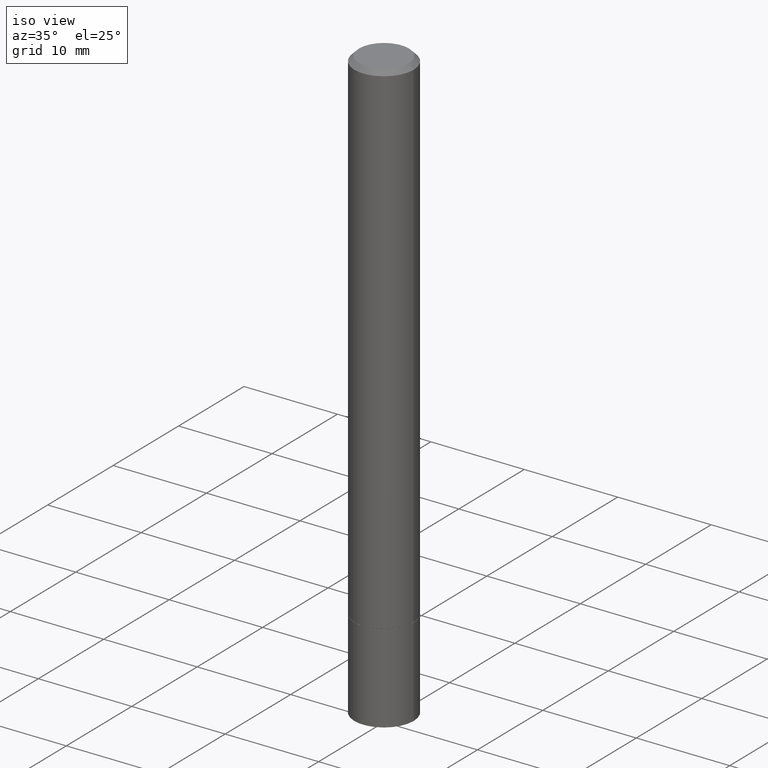
[diagram: clean part render]
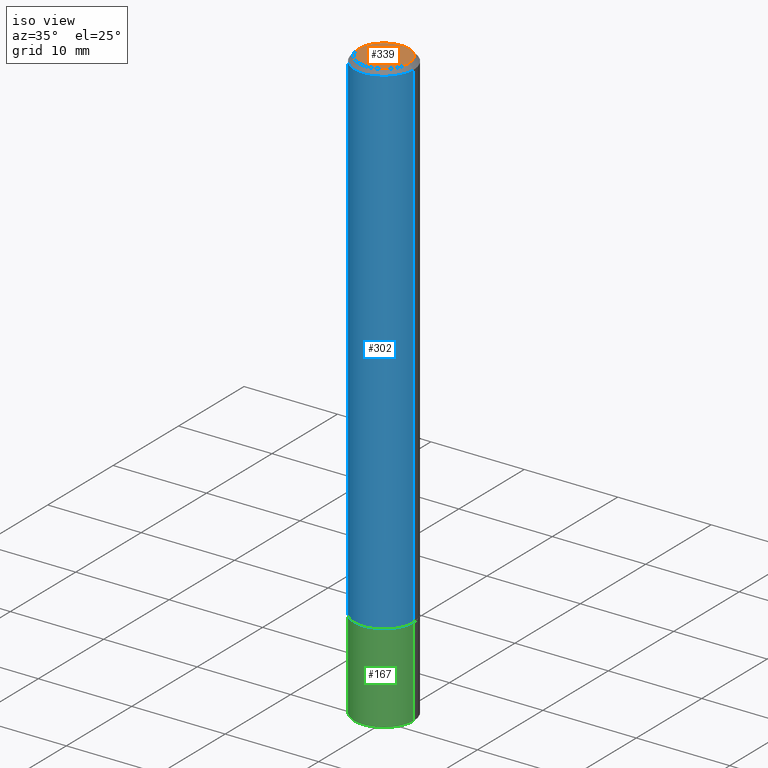
[diagram: same view with three faces highlighted in distinct colors, each labeled with its STEP entity id]
A machine part, iso view with three faces highlighted in distinct colors.
Their STEP definitions:

[orange] entity #339 — the highlighted planar face has unit normal (0, -0, -1).
#8 = ORIENTED_EDGE ( 'NONE', *, *, #98, .T. ) ;
#24 = PLANE ( 'NONE',  #117 ) ;
#44 = DIRECTION ( 'NONE',  ( -1.000000000000000000, 6.982962677686265922E-15, -4.876176775795935793E-29 ) ) ;
#49 = DIRECTION ( 'NONE',  ( 2.438088387897960049E-29, -3.491481338843145188E-15, -1.000000000000000000 ) ) ;
#95 = CARTESIAN_POINT ( 'NONE',  ( 0.1049999999999997324, -8.238720831321557908E-16, 5.444276250344137453E-30 ) ) ;
#98 = EDGE_CURVE ( 'NONE', #216, #111, #261, .T. ) ;
#111 = VERTEX_POINT ( 'NONE', #137 ) ;
#114 = DIRECTION ( 'NONE',  ( -2.445468806185136597E-29, 3.491481338843145583E-15, 1.000000000000000000 ) ) ;
#117 = AXIS2_PLACEMENT_3D ( 'NONE', #309, #49, #44 ) ;
#118 = DIRECTION ( 'NONE',  ( -2.445468806185136597E-29, 3.491481338843145583E-15, 1.000000000000000000 ) ) ;
#137 = CARTESIAN_POINT ( 'NONE',  ( -0.1049999999999997324, 7.681258945454871096E-16, -5.249639473182153965E-30 ) ) ;
#171 = CARTESIAN_POINT ( 'NONE',  ( 0.000000000000000000, 0.000000000000000000, 0.000000000000000000 ) ) ;
#216 = VERTEX_POINT ( 'NONE', #95 ) ;
#227 = CIRCLE ( 'NONE', #287, 0.1049999999999997324 ) ;
#233 = DIRECTION ( 'NONE',  ( 1.000000000000000000, -6.982962677686265922E-15, 4.876176775795935793E-29 ) ) ;
#243 = EDGE_CURVE ( 'NONE', #111, #216, #227, .T. ) ;
#261 = CIRCLE ( 'NONE', #311, 0.1049999999999997324 ) ;
#278 = EDGE_LOOP ( 'NONE', ( #361, #8 ) ) ;
#287 = AXIS2_PLACEMENT_3D ( 'NONE', #290, #118, #324 ) ;
#290 = CARTESIAN_POINT ( 'NONE',  ( 0.000000000000000000, 0.000000000000000000, 0.000000000000000000 ) ) ;
#309 = CARTESIAN_POINT ( 'NONE',  ( 7.332110811570560522E-16, 0.1049999999999997324, -3.666055405785293573E-16 ) ) ;
#311 = AXIS2_PLACEMENT_3D ( 'NONE', #171, #114, #233 ) ;
#324 = DIRECTION ( 'NONE',  ( 1.000000000000000000, -6.982962677686265922E-15, 4.876176775795935793E-29 ) ) ;
#331 = FACE_OUTER_BOUND ( 'NONE', #278, .T. ) ;
#339 = ADVANCED_FACE ( 'NONE', ( #331 ), #24, .F. ) ;
#361 = ORIENTED_EDGE ( 'NONE', *, *, #243, .T. ) ;

[blue] entity #302 — the highlighted cylindrical surface (edge-blend (fillet) strip) has radius 3.175 mm, axis along (-0, 0, 1).
#9 = LINE ( 'NONE', #88, #52 ) ;
#13 = LINE ( 'NONE', #248, #205 ) ;
#21 = CIRCLE ( 'NONE', #319, 0.1250000000000000000 ) ;
#22 = VERTEX_POINT ( 'NONE', #55 ) ;
#39 = CARTESIAN_POINT ( 'NONE',  ( -0.1249999999999997224, 8.030407079339183643E-16, -0.02000000000000003511 ) ) ;
#52 = VECTOR ( 'NONE', #112, 39.37007874015748143 ) ;
#53 = VERTEX_POINT ( 'NONE', #347 ) ;
#55 = CARTESIAN_POINT ( 'NONE',  ( 0.1250000000000000000, -8.288776698413625533E-15, -2.124000000000000110 ) ) ;
#81 = EDGE_CURVE ( 'NONE', #53, #155, #9, .T. ) ;
#88 = CARTESIAN_POINT ( 'NONE',  ( -0.1249999999999998612, 8.881784197001242463E-16, -6.148668862818625221E-30 ) ) ;
#97 = ORIENTED_EDGE ( 'NONE', *, *, #220, .F. ) ;
#101 = ORIENTED_EDGE ( 'NONE', *, *, #81, .F. ) ;
#102 = CYLINDRICAL_SURFACE ( 'NONE', #308, 0.1249999999999998612 ) ;
#112 = DIRECTION ( 'NONE',  ( -2.445468806185136877E-29, 3.491481338843145188E-15, 1.000000000000000000 ) ) ;
#151 = CARTESIAN_POINT ( 'NONE',  ( 5.194175744337230786E-29, -7.415906363702842194E-15, -2.124000000000000110 ) ) ;
#155 = VERTEX_POINT ( 'NONE', #39 ) ;
#161 = AXIS2_PLACEMENT_3D ( 'NONE', #173, #238, #181 ) ;
#173 = CARTESIAN_POINT ( 'NONE',  ( 4.890937612370281041E-31, -6.982962677686302702E-17, -0.02000000000000003511 ) ) ;
#181 = DIRECTION ( 'NONE',  ( 1.000000000000000000, -6.982962677686266711E-15, 0.000000000000000000 ) ) ;
#190 = ORIENTED_EDGE ( 'NONE', *, *, #297, .T. ) ;
#193 = DIRECTION ( 'NONE',  ( 1.000000000000000000, -6.982962677686266711E-15, 4.876176775795935793E-29 ) ) ;
#194 = ORIENTED_EDGE ( 'NONE', *, *, #292, .T. ) ;
#205 = VECTOR ( 'NONE', #219, 39.37007874015748143 ) ;
#208 = CARTESIAN_POINT ( 'NONE',  ( 0.1249999999999997224, -9.273918764983025741E-16, -0.02000000000000003511 ) ) ;
#219 = DIRECTION ( 'NONE',  ( -2.445468806185136877E-29, 3.491481338843145188E-15, 1.000000000000000000 ) ) ;
#220 = EDGE_CURVE ( 'NONE', #155, #270, #326, .T. ) ;
#234 = DIRECTION ( 'NONE',  ( -2.445468806185136597E-29, 3.491481338843145583E-15, 1.000000000000000000 ) ) ;
#238 = DIRECTION ( 'NONE',  ( -2.445468806185136597E-29, 3.491481338843145583E-15, 1.000000000000000000 ) ) ;
#248 = CARTESIAN_POINT ( 'NONE',  ( 0.1249999999999998612, -8.728703347107823527E-16, 6.095220969744912735E-30 ) ) ;
#249 = EDGE_LOOP ( 'NONE', ( #101, #194, #190, #97 ) ) ;
#268 = DIRECTION ( 'NONE',  ( 1.000000000000000000, -6.982962677686270655E-15, 0.000000000000000000 ) ) ;
#270 = VERTEX_POINT ( 'NONE', #208 ) ;
#292 = EDGE_CURVE ( 'NONE', #53, #22, #21, .T. ) ;
#297 = EDGE_CURVE ( 'NONE', #22, #270, #13, .T. ) ;
#301 = DIRECTION ( 'NONE',  ( -2.445468806185136597E-29, 3.491481338843145583E-15, 1.000000000000000000 ) ) ;
#302 = ADVANCED_FACE ( 'NONE', ( #328 ), #102, .T. ) ;
#308 = AXIS2_PLACEMENT_3D ( 'NONE', #333, #301, #193 ) ;
#319 = AXIS2_PLACEMENT_3D ( 'NONE', #151, #234, #268 ) ;
#326 = CIRCLE ( 'NONE', #161, 0.1249999999999997224 ) ;
#328 = FACE_OUTER_BOUND ( 'NONE', #249, .T. ) ;
#333 = CARTESIAN_POINT ( 'NONE',  ( 0.000000000000000000, 0.000000000000000000, 0.000000000000000000 ) ) ;
#347 = CARTESIAN_POINT ( 'NONE',  ( -0.1250000000000000000, -2.854689575539722781E-15, -2.124000000000000110 ) ) ;

[green] entity #167 — the highlighted cylindrical surface (edge-blend (fillet) strip) has radius 3.175 mm, axis along (-0, 0, 1).
#11 = CYLINDRICAL_SURFACE ( 'NONE', #191, 0.1250000000000000000 ) ;
#12 = VECTOR ( 'NONE', #145, 39.37007874015748143 ) ;
#33 = EDGE_LOOP ( 'NONE', ( #330, #107, #228, #252 ) ) ;
#36 = LINE ( 'NONE', #68, #12 ) ;
#40 = CARTESIAN_POINT ( 'NONE',  ( 5.196621213143415268E-29, -7.419397845041685201E-15, -2.125000000000000000 ) ) ;
#57 = DIRECTION ( 'NONE',  ( -2.445468806185136597E-29, 3.491481338843145583E-15, 1.000000000000000000 ) ) ;
#61 = CIRCLE ( 'NONE', #165, 0.1250000000000000000 ) ;
#65 = LINE ( 'NONE', #236, #113 ) ;
#66 = EDGE_CURVE ( 'NONE', #303, #222, #239, .T. ) ;
#68 = CARTESIAN_POINT ( 'NONE',  ( -0.1250000000000000000, 8.881784197001252323E-16, -6.148668862818632227E-30 ) ) ;
#93 = DIRECTION ( 'NONE',  ( -2.445468806185136877E-29, 3.491481338843145188E-15, 1.000000000000000000 ) ) ;
#107 = ORIENTED_EDGE ( 'NONE', *, *, #66, .T. ) ;
#113 = VECTOR ( 'NONE', #93, 39.37007874015748143 ) ;
#121 = DIRECTION ( 'NONE',  ( 1.000000000000000000, -6.982962677686270655E-15, 0.000000000000000000 ) ) ;
#145 = DIRECTION ( 'NONE',  ( -2.445468806185136877E-29, 3.491481338843145188E-15, 1.000000000000000000 ) ) ;
#149 = DIRECTION ( 'NONE',  ( -2.445468806185136597E-29, 3.491481338843145583E-15, 1.000000000000000000 ) ) ;
#165 = AXIS2_PLACEMENT_3D ( 'NONE', #40, #149, #121 ) ;
#167 = ADVANCED_FACE ( 'NONE', ( #242 ), #11, .T. ) ;
#169 = DIRECTION ( 'NONE',  ( 1.000000000000000000, -6.982962677686270655E-15, 0.000000000000000000 ) ) ;
#176 = CARTESIAN_POINT ( 'NONE',  ( -0.1250000000000000000, -7.185872176374649840E-15, -2.125000000000000000 ) ) ;
#185 = CARTESIAN_POINT ( 'NONE',  ( -0.1250000000000000000, -7.185872176374649840E-15, -2.500000000000000000 ) ) ;
#191 = AXIS2_PLACEMENT_3D ( 'NONE', #240, #267, #350 ) ;
#192 = EDGE_CURVE ( 'NONE', #222, #226, #65, .T. ) ;
#197 = VERTEX_POINT ( 'NONE', #176 ) ;
#222 = VERTEX_POINT ( 'NONE', #296 ) ;
#226 = VERTEX_POINT ( 'NONE', #349 ) ;
#228 = ORIENTED_EDGE ( 'NONE', *, *, #192, .T. ) ;
#236 = CARTESIAN_POINT ( 'NONE',  ( 0.1250000000000000000, -8.728703347107833388E-16, 6.095220969744919741E-30 ) ) ;
#239 = CIRCLE ( 'NONE', #256, 0.1250000000000000000 ) ;
#240 = CARTESIAN_POINT ( 'NONE',  ( 0.000000000000000000, 0.000000000000000000, 0.000000000000000000 ) ) ;
#242 = FACE_OUTER_BOUND ( 'NONE', #33, .T. ) ;
#252 = ORIENTED_EDGE ( 'NONE', *, *, #285, .F. ) ;
#256 = AXIS2_PLACEMENT_3D ( 'NONE', #315, #57, #169 ) ;
#265 = EDGE_CURVE ( 'NONE', #303, #197, #36, .T. ) ;
#267 = DIRECTION ( 'NONE',  ( -2.445468806185136597E-29, 3.491481338843145583E-15, 1.000000000000000000 ) ) ;
#285 = EDGE_CURVE ( 'NONE', #197, #226, #61, .T. ) ;
#296 = CARTESIAN_POINT ( 'NONE',  ( 0.1250000000000000000, -9.601573681818648281E-15, -2.500000000000000000 ) ) ;
#303 = VERTEX_POINT ( 'NONE', #185 ) ;
#315 = CARTESIAN_POINT ( 'NONE',  ( 6.113672015462842613E-29, -8.728703347107864943E-15, -2.500000000000000000 ) ) ;
#330 = ORIENTED_EDGE ( 'NONE', *, *, #265, .F. ) ;
#349 = CARTESIAN_POINT ( 'NONE',  ( 0.1250000000000000000, -8.292268179752468540E-15, -2.125000000000000000 ) ) ;
#350 = DIRECTION ( 'NONE',  ( 1.000000000000000000, -6.982962677686266711E-15, 4.876176775795935793E-29 ) ) ;